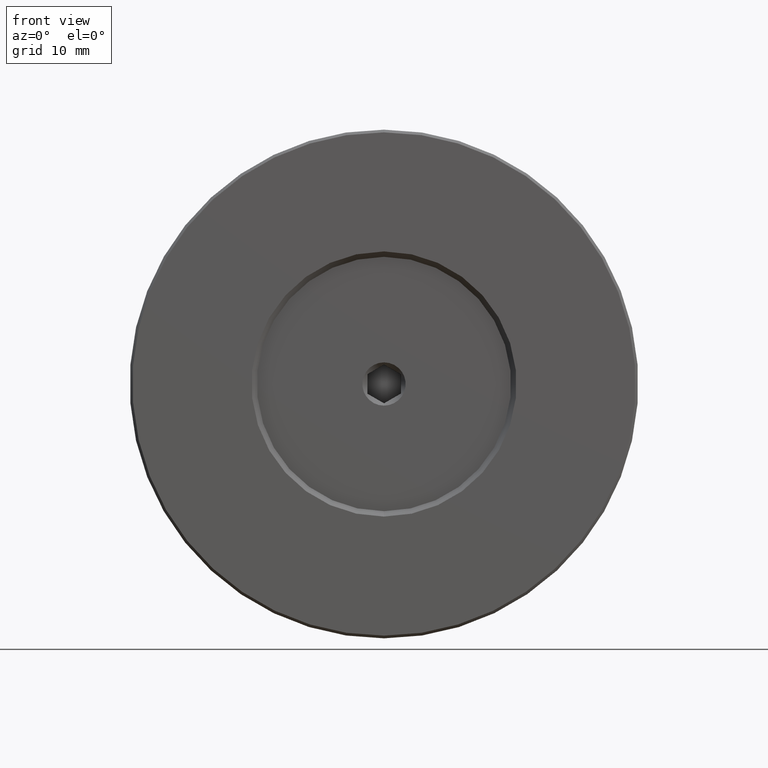
[diagram: clean part render]
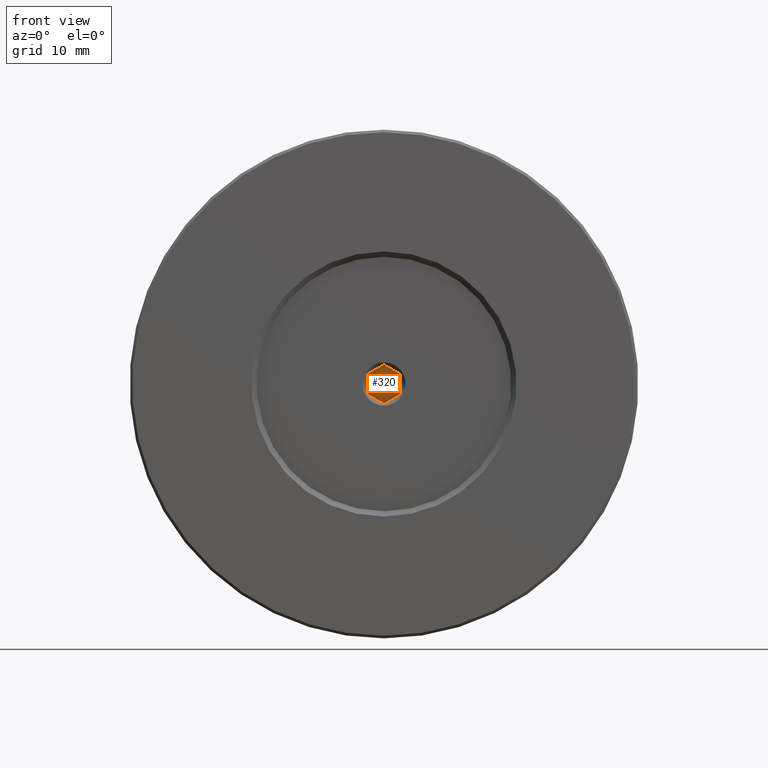
[diagram: same view with one face highlighted and labeled with its STEP entity id]
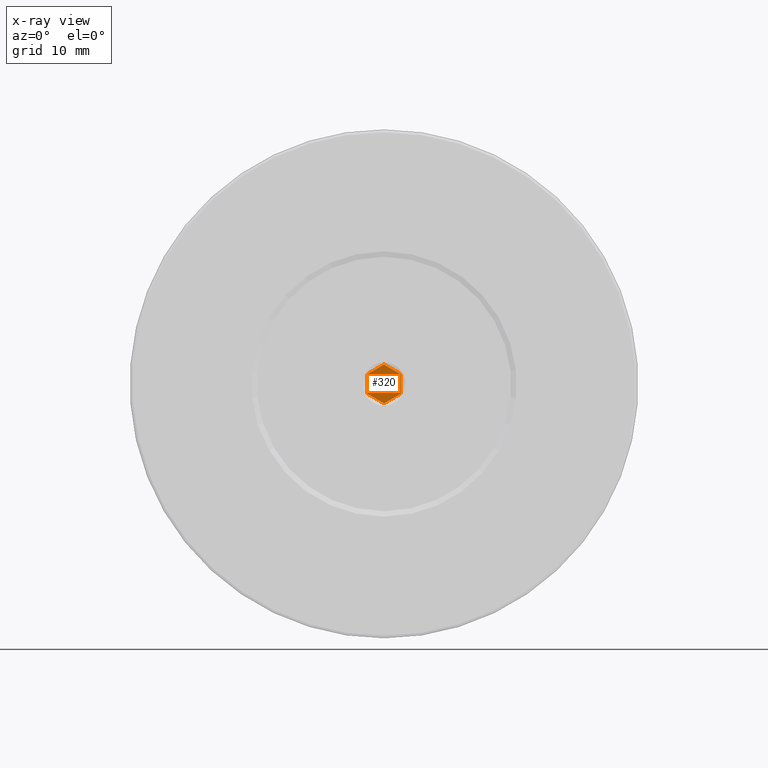
[diagram: x-ray of the same camera — body ghosted, the highlighted face saturated]
A machine part, front view. The second image highlights one B-rep face of the part: STEP entity #320.
The next image is the same camera in x-ray: the body ghosted, the highlighted face saturated — about 0% of this face is hidden behind the body in this view.
In plain terms, the highlighted planar face has unit normal (0, -1, 0).
Its self-contained STEP definition (entity closure, byte-faithful):
#40 = VECTOR ( 'NONE', #573, 1000.000000000000000 ) ;
#46 = CARTESIAN_POINT ( 'NONE',  ( -1.550000000000000266, 3.500000000000000000, 0.8948929172439208379 ) ) ;
#51 = CARTESIAN_POINT ( 'NONE',  ( 1.549999999999999600, 3.500000000000000000, 0.8948929172439209490 ) ) ;
#61 = DIRECTION ( 'NONE',  ( 0.000000000000000000, -1.000000000000000000, 0.000000000000000000 ) ) ;
#97 = ORIENTED_EDGE ( 'NONE', *, *, #800, .T. ) ;
#115 = LINE ( 'NONE', #46, #40 ) ;
#121 = EDGE_CURVE ( 'NONE', #494, #793, #424, .T. ) ;
#134 = LINE ( 'NONE', #731, #706 ) ;
#136 = CARTESIAN_POINT ( 'NONE',  ( 0.000000000000000000, 3.500000000000000000, 0.000000000000000000 ) ) ;
#143 = CARTESIAN_POINT ( 'NONE',  ( -3.705363497162986983E-18, 3.500000000000000000, 1.789785834487840788 ) ) ;
#156 = DIRECTION ( 'NONE',  ( -0.8660254037844387076, 0.000000000000000000, -0.4999999999999999445 ) ) ;
#168 = VECTOR ( 'NONE', #707, 1000.000000000000114 ) ;
#196 = EDGE_CURVE ( 'NONE', #675, #727, #620, .T. ) ;
#214 = DIRECTION ( 'NONE',  ( -0.8660254037844385966, 0.000000000000000000, 0.5000000000000001110 ) ) ;
#220 = CARTESIAN_POINT ( 'NONE',  ( -1.550000000000000266, 3.500000000000000000, -0.8948929172439197277 ) ) ;
#233 = CARTESIAN_POINT ( 'NONE',  ( -5.302822042044525202E-16, 3.500000000000000000, -1.789785834487839900 ) ) ;
#279 = CARTESIAN_POINT ( 'NONE',  ( 1.549999999999999600, 3.500000000000000000, 0.8948929172439209490 ) ) ;
#287 = CARTESIAN_POINT ( 'NONE',  ( 1.549999999999999822, 3.500000000000000000, -0.8948929172439203938 ) ) ;
#320 = ADVANCED_FACE ( 'NONE', ( #388 ), #652, .T. ) ;
#323 = DIRECTION ( 'NONE',  ( 0.000000000000000000, -0.000000000000000000, -1.000000000000000000 ) ) ;
#364 = EDGE_CURVE ( 'NONE', #793, #515, #791, .T. ) ;
#384 = VECTOR ( 'NONE', #156, 1000.000000000000000 ) ;
#388 = FACE_OUTER_BOUND ( 'NONE', #566, .T. ) ;
#401 = DIRECTION ( 'NONE',  ( 0.8660254037844384856, 0.000000000000000000, -0.5000000000000002220 ) ) ;
#406 = ORIENTED_EDGE ( 'NONE', *, *, #196, .T. ) ;
#422 = CARTESIAN_POINT ( 'NONE',  ( -5.302822042044525202E-16, 3.500000000000000000, -1.789785834487839900 ) ) ;
#424 = LINE ( 'NONE', #279, #495 ) ;
#494 = VERTEX_POINT ( 'NONE', #51 ) ;
#495 = VECTOR ( 'NONE', #214, 1000.000000000000000 ) ;
#504 = CARTESIAN_POINT ( 'NONE',  ( -1.550000000000000266, 3.500000000000000000, 0.8948929172439208379 ) ) ;
#515 = VERTEX_POINT ( 'NONE', #504 ) ;
#528 = ORIENTED_EDGE ( 'NONE', *, *, #834, .T. ) ;
#566 = EDGE_LOOP ( 'NONE', ( #406, #97, #703, #663, #528, #659 ) ) ;
#573 = DIRECTION ( 'NONE',  ( 0.000000000000000000, 0.000000000000000000, -1.000000000000000000 ) ) ;
#605 = EDGE_CURVE ( 'NONE', #798, #675, #134, .T. ) ;
#620 = LINE ( 'NONE', #233, #168 ) ;
#626 = LINE ( 'NONE', #771, #801 ) ;
#652 = PLANE ( 'NONE',  #678 ) ;
#659 = ORIENTED_EDGE ( 'NONE', *, *, #605, .T. ) ;
#663 = ORIENTED_EDGE ( 'NONE', *, *, #364, .T. ) ;
#675 = VERTEX_POINT ( 'NONE', #422 ) ;
#678 = AXIS2_PLACEMENT_3D ( 'NONE', #136, #61, #323 ) ;
#703 = ORIENTED_EDGE ( 'NONE', *, *, #121, .T. ) ;
#706 = VECTOR ( 'NONE', #401, 1000.000000000000114 ) ;
#707 = DIRECTION ( 'NONE',  ( 0.8660254037844387076, 0.000000000000000000, 0.4999999999999997224 ) ) ;
#727 = VERTEX_POINT ( 'NONE', #287 ) ;
#731 = CARTESIAN_POINT ( 'NONE',  ( -1.550000000000000266, 3.500000000000000000, -0.8948929172439197277 ) ) ;
#771 = CARTESIAN_POINT ( 'NONE',  ( 1.549999999999999822, 3.500000000000000000, -0.8948929172439203938 ) ) ;
#791 = LINE ( 'NONE', #143, #384 ) ;
#793 = VERTEX_POINT ( 'NONE', #812 ) ;
#798 = VERTEX_POINT ( 'NONE', #220 ) ;
#800 = EDGE_CURVE ( 'NONE', #727, #494, #626, .T. ) ;
#801 = VECTOR ( 'NONE', #839, 1000.000000000000000 ) ;
#812 = CARTESIAN_POINT ( 'NONE',  ( -3.705363497162986983E-18, 3.500000000000000000, 1.789785834487840788 ) ) ;
#834 = EDGE_CURVE ( 'NONE', #515, #798, #115, .T. ) ;
#839 = DIRECTION ( 'NONE',  ( -1.211544031239643760E-16, 0.000000000000000000, 1.000000000000000000 ) ) ;